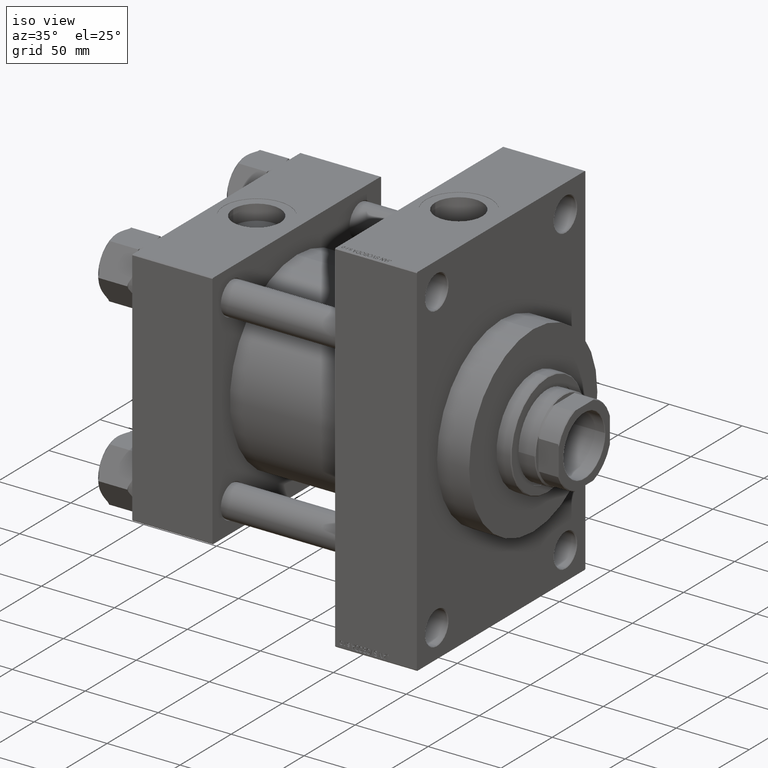
[diagram: clean part render]
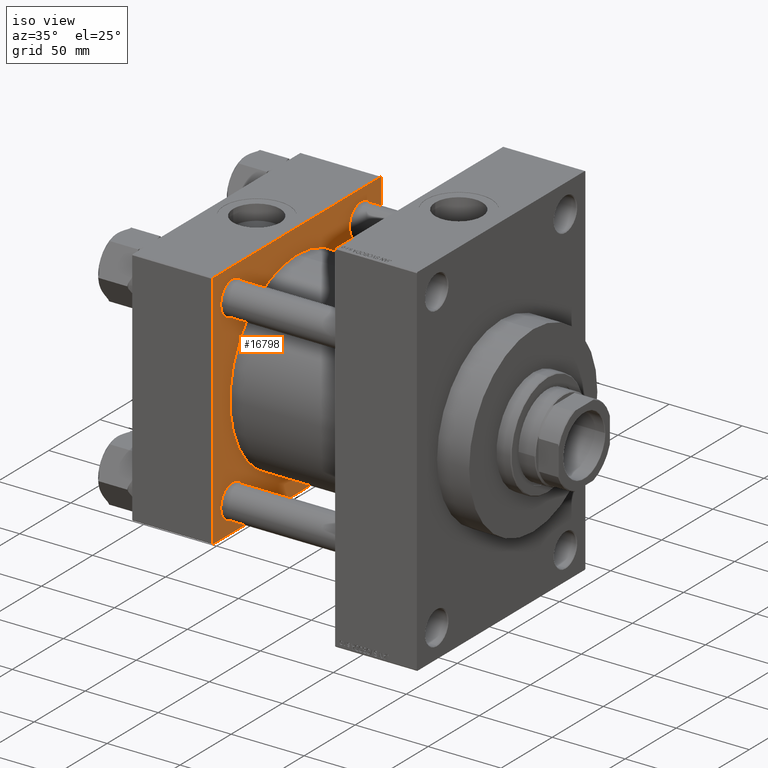
[diagram: same view with one face highlighted and labeled with its STEP entity id]
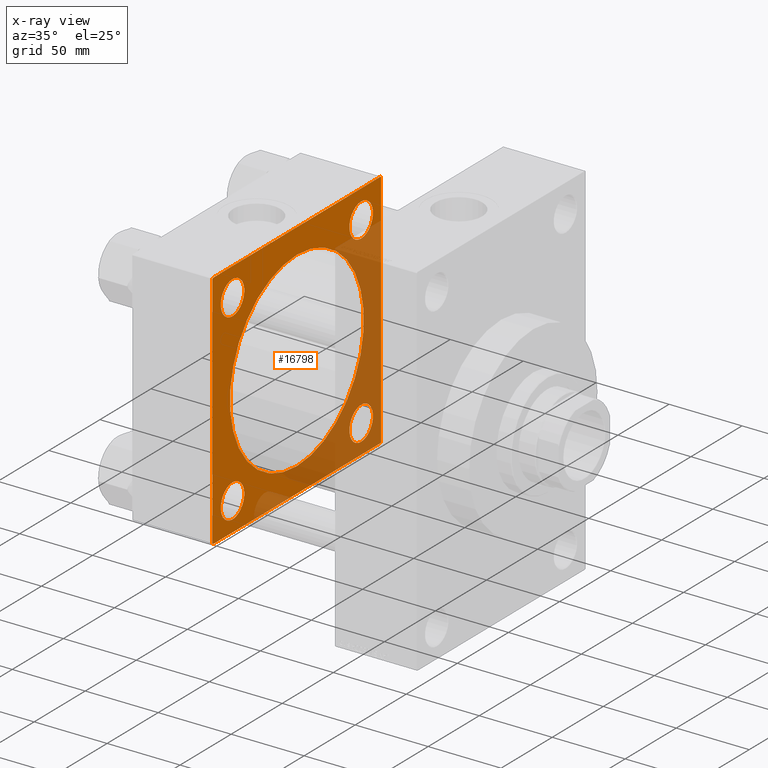
[diagram: x-ray of the same camera — body ghosted, the highlighted face saturated]
A machine part, iso view. The second image highlights one B-rep face of the part: STEP entity #16798.
The next image is the same camera in x-ray: the body ghosted, the highlighted face saturated — about 39% of this face is hidden behind the body in this view.
In plain terms, the highlighted planar face has unit normal (-1, 0, 0).
Its self-contained STEP definition (entity closure, byte-faithful):
#14 = CARTESIAN_POINT ( 'NONE',  ( 55.00000000000000000, 0.000000000000000000, 0.000000000000000000 ) ) ;
#90 = CIRCLE ( 'NONE', #21721, 11.49999999999998224 ) ;
#634 = EDGE_CURVE ( 'NONE', #2371, #37629, #38538, .T. ) ;
#780 = DIRECTION ( 'NONE',  ( 0.000000000000000000, -1.000000000000000000, -8.410780489584519171E-17 ) ) ;
#845 = VERTEX_POINT ( 'NONE', #8544 ) ;
#1207 = VERTEX_POINT ( 'NONE', #28018 ) ;
#1336 = EDGE_CURVE ( 'NONE', #845, #32613, #25278, .T. ) ;
#1425 = DIRECTION ( 'NONE',  ( -1.000000000000000000, 0.000000000000000000, 0.000000000000000000 ) ) ;
#1566 = DIRECTION ( 'NONE',  ( -1.000000000000000000, 0.000000000000000000, 0.000000000000000000 ) ) ;
#1674 = CARTESIAN_POINT ( 'NONE',  ( 55.00000000000000000, -62.94999999999998153, -51.45000000000003837 ) ) ;
#2175 = CARTESIAN_POINT ( 'NONE',  ( 54.99999999999999289, -2.602085213965210642E-15, 0.000000000000000000 ) ) ;
#2371 = VERTEX_POINT ( 'NONE', #11707 ) ;
#2641 = VECTOR ( 'NONE', #19948, 1000.000000000000114 ) ;
#2935 = VERTEX_POINT ( 'NONE', #30879 ) ;
#3059 = FACE_BOUND ( 'NONE', #38645, .T. ) ;
#3333 = DIRECTION ( 'NONE',  ( 1.000000000000000000, -0.000000000000000000, -0.000000000000000000 ) ) ;
#3877 = ORIENTED_EDGE ( 'NONE', *, *, #16617, .T. ) ;
#3902 = CARTESIAN_POINT ( 'NONE',  ( 55.00000000000000000, 82.50000000000002842, -82.00000000000000000 ) ) ;
#4529 = VECTOR ( 'NONE', #34810, 1000.000000000000114 ) ;
#4868 = AXIS2_PLACEMENT_3D ( 'NONE', #14500, #29799, #34033 ) ;
#5671 = DIRECTION ( 'NONE',  ( 0.000000000000000000, 0.000000000000000000, 1.000000000000000000 ) ) ;
#5774 = ORIENTED_EDGE ( 'NONE', *, *, #19845, .T. ) ;
#7042 = DIRECTION ( 'NONE',  ( -1.000000000000000000, 0.000000000000000000, 0.000000000000000000 ) ) ;
#7538 = FACE_BOUND ( 'NONE', #24880, .T. ) ;
#7699 = EDGE_CURVE ( 'NONE', #32613, #9288, #38717, .T. ) ;
#7714 = CIRCLE ( 'NONE', #33304, 11.49999999999998224 ) ;
#7718 = CIRCLE ( 'NONE', #20502, 11.49999999999998224 ) ;
#7777 = EDGE_CURVE ( 'NONE', #34711, #15384, #24301, .T. ) ;
#8084 = AXIS2_PLACEMENT_3D ( 'NONE', #29700, #18417, #29460 ) ;
#8284 = AXIS2_PLACEMENT_3D ( 'NONE', #36450, #1425, #5671 ) ;
#8360 = ORIENTED_EDGE ( 'NONE', *, *, #26247, .T. ) ;
#8544 = CARTESIAN_POINT ( 'NONE',  ( 55.00000000000000000, -82.49999999999997158, 82.00000000000001421 ) ) ;
#8620 = DIRECTION ( 'NONE',  ( 0.000000000000000000, -0.7071067811865474617, 0.7071067811865474617 ) ) ;
#8798 = EDGE_CURVE ( 'NONE', #11040, #9092, #20120, .T. ) ;
#8857 = CIRCLE ( 'NONE', #8084, 11.49999999999998224 ) ;
#9092 = VERTEX_POINT ( 'NONE', #11814 ) ;
#9141 = VECTOR ( 'NONE', #780, 1000.000000000000000 ) ;
#9288 = VERTEX_POINT ( 'NONE', #19227 ) ;
#10068 = FACE_BOUND ( 'NONE', #44705, .T. ) ;
#10182 = DIRECTION ( 'NONE',  ( 0.000000000000000000, 0.000000000000000000, 1.000000000000000000 ) ) ;
#10356 = AXIS2_PLACEMENT_3D ( 'NONE', #48232, #40480, #10182 ) ;
#10973 = VERTEX_POINT ( 'NONE', #18393 ) ;
#11040 = VERTEX_POINT ( 'NONE', #13272 ) ;
#11707 = CARTESIAN_POINT ( 'NONE',  ( 54.99999999999999289, -2.602085213965210642E-15, 65.50000000000001421 ) ) ;
#11783 = CARTESIAN_POINT ( 'NONE',  ( 55.00000000000000000, 62.95000000000000284, -51.45000000000002416 ) ) ;
#11798 = CIRCLE ( 'NONE', #22232, 11.49999999999998224 ) ;
#11814 = CARTESIAN_POINT ( 'NONE',  ( 55.00000000000000000, 82.00000000000005684, 82.50000000000002842 ) ) ;
#12005 = CARTESIAN_POINT ( 'NONE',  ( 55.00000000000000000, -62.94999999999998153, -74.45000000000000284 ) ) ;
#12073 = VECTOR ( 'NONE', #35089, 1000.000000000000000 ) ;
#12372 = CARTESIAN_POINT ( 'NONE',  ( 55.00000000000000000, 82.00000000000005684, 82.50000000000002842 ) ) ;
#12859 = EDGE_CURVE ( 'NONE', #45022, #24508, #7718, .T. ) ;
#13272 = CARTESIAN_POINT ( 'NONE',  ( 55.00000000000000000, 82.50000000000002842, 82.00000000000005684 ) ) ;
#13298 = EDGE_CURVE ( 'NONE', #1207, #32935, #38810, .T. ) ;
#13425 = CARTESIAN_POINT ( 'NONE',  ( 55.00000000000000000, 62.95000000000000284, -62.95000000000000284 ) ) ;
#14500 = CARTESIAN_POINT ( 'NONE',  ( 55.00000000000000000, -62.94999999999998153, 62.95000000000001705 ) ) ;
#15380 = ORIENTED_EDGE ( 'NONE', *, *, #41279, .F. ) ;
#15384 = VERTEX_POINT ( 'NONE', #1674 ) ;
#16060 = CARTESIAN_POINT ( 'NONE',  ( 55.00000000000000000, 82.50000000000002842, 82.50000000000002842 ) ) ;
#16617 = EDGE_CURVE ( 'NONE', #15384, #34711, #7714, .T. ) ;
#16798 = ADVANCED_FACE ( 'NONE', ( #10068, #25348, #48610, #3059, #7538, #31043 ), #42556, .F. ) ;
#17071 = LINE ( 'NONE', #16060, #12073 ) ;
#17712 = CARTESIAN_POINT ( 'NONE',  ( 54.99999999999999289, 5.419351320449953395E-15, -65.50000000000001421 ) ) ;
#18393 = CARTESIAN_POINT ( 'NONE',  ( 55.00000000000000000, 62.95000000000000284, 74.44999999999998863 ) ) ;
#18417 = DIRECTION ( 'NONE',  ( -1.000000000000000000, 0.000000000000000000, 0.000000000000000000 ) ) ;
#18960 = CARTESIAN_POINT ( 'NONE',  ( 55.00000000000000000, -82.00000000000000000, -82.50000000000000000 ) ) ;
#19227 = CARTESIAN_POINT ( 'NONE',  ( 55.00000000000000000, -82.00000000000000000, -82.50000000000000000 ) ) ;
#19290 = CARTESIAN_POINT ( 'NONE',  ( 55.00000000000000000, 82.50000000000002842, -82.00000000000000000 ) ) ;
#19362 = AXIS2_PLACEMENT_3D ( 'NONE', #21484, #40736, #24733 ) ;
#19799 = CARTESIAN_POINT ( 'NONE',  ( 55.00000000000000000, 82.50000000000002842, 82.50000000000002842 ) ) ;
#19845 = EDGE_CURVE ( 'NONE', #20356, #2935, #11798, .T. ) ;
#19948 = DIRECTION ( 'NONE',  ( -0.000000000000000000, -0.7071067811865474617, -0.7071067811865474617 ) ) ;
#20120 = LINE ( 'NONE', #12372, #33921 ) ;
#20356 = VERTEX_POINT ( 'NONE', #44911 ) ;
#20502 = AXIS2_PLACEMENT_3D ( 'NONE', #37882, #29659, #45180 ) ;
#21484 = CARTESIAN_POINT ( 'NONE',  ( 54.99999999999999289, -2.602085213965210642E-15, 0.000000000000000000 ) ) ;
#21652 = CIRCLE ( 'NONE', #4868, 11.49999999999998224 ) ;
#21721 = AXIS2_PLACEMENT_3D ( 'NONE', #13425, #28726, #25234 ) ;
#21872 = ORIENTED_EDGE ( 'NONE', *, *, #13298, .T. ) ;
#22232 = AXIS2_PLACEMENT_3D ( 'NONE', #34058, #7042, #34292 ) ;
#22577 = CARTESIAN_POINT ( 'NONE',  ( 55.00000000000000000, 62.95000000000000284, 51.45000000000002416 ) ) ;
#23071 = EDGE_CURVE ( 'NONE', #10973, #39757, #27159, .T. ) ;
#23372 = EDGE_LOOP ( 'NONE', ( #8360, #5774 ) ) ;
#23478 = VECTOR ( 'NONE', #31204, 999.9999999999998863 ) ;
#23779 = DIRECTION ( 'NONE',  ( 0.000000000000000000, 0.000000000000000000, 1.000000000000000000 ) ) ;
#24301 = CIRCLE ( 'NONE', #8284, 11.49999999999998224 ) ;
#24508 = VERTEX_POINT ( 'NONE', #28796 ) ;
#24639 = EDGE_LOOP ( 'NONE', ( #43923, #21872, #43137, #25146, #43891, #44639, #28345, #36112 ) ) ;
#24733 = DIRECTION ( 'NONE',  ( 0.000000000000000000, 0.000000000000000000, 1.000000000000000000 ) ) ;
#24880 = EDGE_LOOP ( 'NONE', ( #29161, #15380 ) ) ;
#25146 = ORIENTED_EDGE ( 'NONE', *, *, #8798, .T. ) ;
#25212 = DIRECTION ( 'NONE',  ( 0.000000000000000000, 0.000000000000000000, 1.000000000000000000 ) ) ;
#25234 = DIRECTION ( 'NONE',  ( 0.000000000000000000, 0.000000000000000000, 1.000000000000000000 ) ) ;
#25278 = LINE ( 'NONE', #29276, #29786 ) ;
#25348 = FACE_BOUND ( 'NONE', #48527, .T. ) ;
#26247 = EDGE_CURVE ( 'NONE', #2935, #20356, #21652, .T. ) ;
#27159 = CIRCLE ( 'NONE', #10356, 11.49999999999998224 ) ;
#27214 = EDGE_CURVE ( 'NONE', #24508, #45022, #90, .T. ) ;
#28018 = CARTESIAN_POINT ( 'NONE',  ( 55.00000000000000000, 82.00000000000005684, -82.49999999999997158 ) ) ;
#28345 = ORIENTED_EDGE ( 'NONE', *, *, #1336, .T. ) ;
#28726 = DIRECTION ( 'NONE',  ( -1.000000000000000000, 0.000000000000000000, 0.000000000000000000 ) ) ;
#28796 = CARTESIAN_POINT ( 'NONE',  ( 55.00000000000000000, 62.95000000000000284, -74.44999999999998863 ) ) ;
#29161 = ORIENTED_EDGE ( 'NONE', *, *, #634, .F. ) ;
#29276 = CARTESIAN_POINT ( 'NONE',  ( 55.00000000000000000, -82.49999999999997158, 82.50000000000001421 ) ) ;
#29460 = DIRECTION ( 'NONE',  ( 0.000000000000000000, 0.000000000000000000, 1.000000000000000000 ) ) ;
#29659 = DIRECTION ( 'NONE',  ( -1.000000000000000000, 0.000000000000000000, 0.000000000000000000 ) ) ;
#29700 = CARTESIAN_POINT ( 'NONE',  ( 55.00000000000000000, 62.95000000000000284, 62.95000000000000284 ) ) ;
#29786 = VECTOR ( 'NONE', #41496, 1000.000000000000000 ) ;
#29799 = DIRECTION ( 'NONE',  ( -1.000000000000000000, 0.000000000000000000, 0.000000000000000000 ) ) ;
#30149 = EDGE_CURVE ( 'NONE', #39757, #10973, #8857, .T. ) ;
#30564 = DIRECTION ( 'NONE',  ( -1.000000000000000000, 0.000000000000000000, 0.000000000000000000 ) ) ;
#30606 = EDGE_CURVE ( 'NONE', #11040, #32935, #17071, .T. ) ;
#30879 = CARTESIAN_POINT ( 'NONE',  ( 55.00000000000000000, -62.94999999999998153, 51.45000000000003837 ) ) ;
#31043 = FACE_OUTER_BOUND ( 'NONE', #24639, .T. ) ;
#31204 = DIRECTION ( 'NONE',  ( 0.000000000000000000, 0.7071067811865376918, -0.7071067811865574537 ) ) ;
#31673 = AXIS2_PLACEMENT_3D ( 'NONE', #14, #30564, #23779 ) ;
#32171 = CARTESIAN_POINT ( 'NONE',  ( 55.00000000000000000, 82.50000000000002842, -82.49999999999997158 ) ) ;
#32613 = VERTEX_POINT ( 'NONE', #37072 ) ;
#32678 = DIRECTION ( 'NONE',  ( 0.000000000000000000, -1.000000000000000000, -1.682156097916903588E-16 ) ) ;
#32909 = CARTESIAN_POINT ( 'NONE',  ( 55.00000000000000000, -81.99999999999997158, 82.50000000000001421 ) ) ;
#32935 = VERTEX_POINT ( 'NONE', #3902 ) ;
#33304 = AXIS2_PLACEMENT_3D ( 'NONE', #35585, #1566, #44125 ) ;
#33921 = VECTOR ( 'NONE', #8620, 1000.000000000000114 ) ;
#34033 = DIRECTION ( 'NONE',  ( 0.000000000000000000, 0.000000000000000000, 1.000000000000000000 ) ) ;
#34055 = EDGE_CURVE ( 'NONE', #35543, #845, #38729, .T. ) ;
#34058 = CARTESIAN_POINT ( 'NONE',  ( 55.00000000000000000, -62.94999999999998153, 62.95000000000001705 ) ) ;
#34292 = DIRECTION ( 'NONE',  ( 0.000000000000000000, 0.000000000000000000, 1.000000000000000000 ) ) ;
#34711 = VERTEX_POINT ( 'NONE', #12005 ) ;
#34810 = DIRECTION ( 'NONE',  ( -0.000000000000000000, 0.7071067811865474617, 0.7071067811865474617 ) ) ;
#35089 = DIRECTION ( 'NONE',  ( 0.000000000000000000, 0.000000000000000000, -1.000000000000000000 ) ) ;
#35297 = LINE ( 'NONE', #19799, #9141 ) ;
#35543 = VERTEX_POINT ( 'NONE', #32909 ) ;
#35585 = CARTESIAN_POINT ( 'NONE',  ( 55.00000000000000000, -62.94999999999998153, -62.95000000000001705 ) ) ;
#36112 = ORIENTED_EDGE ( 'NONE', *, *, #7699, .T. ) ;
#36450 = CARTESIAN_POINT ( 'NONE',  ( 55.00000000000000000, -62.94999999999998153, -62.95000000000001705 ) ) ;
#37072 = CARTESIAN_POINT ( 'NONE',  ( 55.00000000000000000, -82.50000000000000000, -81.99999999999998579 ) ) ;
#37629 = VERTEX_POINT ( 'NONE', #17712 ) ;
#37722 = VECTOR ( 'NONE', #32678, 1000.000000000000000 ) ;
#37882 = CARTESIAN_POINT ( 'NONE',  ( 55.00000000000000000, 62.95000000000000284, -62.95000000000000284 ) ) ;
#38538 = CIRCLE ( 'NONE', #48180, 65.50000000000001421 ) ;
#38645 = EDGE_LOOP ( 'NONE', ( #39127, #43192 ) ) ;
#38717 = LINE ( 'NONE', #18960, #23478 ) ;
#38729 = LINE ( 'NONE', #38977, #2641 ) ;
#38810 = LINE ( 'NONE', #19290, #4529 ) ;
#38977 = CARTESIAN_POINT ( 'NONE',  ( 55.00000000000000000, -82.49999999999997158, 82.00000000000001421 ) ) ;
#39127 = ORIENTED_EDGE ( 'NONE', *, *, #30149, .T. ) ;
#39757 = VERTEX_POINT ( 'NONE', #22577 ) ;
#40139 = CIRCLE ( 'NONE', #19362, 65.50000000000001421 ) ;
#40325 = ORIENTED_EDGE ( 'NONE', *, *, #12859, .T. ) ;
#40480 = DIRECTION ( 'NONE',  ( -1.000000000000000000, 0.000000000000000000, 0.000000000000000000 ) ) ;
#40736 = DIRECTION ( 'NONE',  ( 1.000000000000000000, -0.000000000000000000, -0.000000000000000000 ) ) ;
#41279 = EDGE_CURVE ( 'NONE', #37629, #2371, #40139, .T. ) ;
#41496 = DIRECTION ( 'NONE',  ( 0.000000000000000000, -1.682156097916903588E-16, -1.000000000000000000 ) ) ;
#41560 = EDGE_CURVE ( 'NONE', #1207, #9288, #47440, .T. ) ;
#41937 = ORIENTED_EDGE ( 'NONE', *, *, #27214, .T. ) ;
#42556 = PLANE ( 'NONE',  #31673 ) ;
#43137 = ORIENTED_EDGE ( 'NONE', *, *, #30606, .F. ) ;
#43192 = ORIENTED_EDGE ( 'NONE', *, *, #23071, .T. ) ;
#43891 = ORIENTED_EDGE ( 'NONE', *, *, #47369, .T. ) ;
#43923 = ORIENTED_EDGE ( 'NONE', *, *, #41560, .F. ) ;
#44125 = DIRECTION ( 'NONE',  ( 0.000000000000000000, 0.000000000000000000, 1.000000000000000000 ) ) ;
#44266 = ORIENTED_EDGE ( 'NONE', *, *, #7777, .T. ) ;
#44639 = ORIENTED_EDGE ( 'NONE', *, *, #34055, .T. ) ;
#44705 = EDGE_LOOP ( 'NONE', ( #44266, #3877 ) ) ;
#44911 = CARTESIAN_POINT ( 'NONE',  ( 55.00000000000000000, -62.94999999999998153, 74.45000000000000284 ) ) ;
#45022 = VERTEX_POINT ( 'NONE', #11783 ) ;
#45180 = DIRECTION ( 'NONE',  ( 0.000000000000000000, 0.000000000000000000, 1.000000000000000000 ) ) ;
#47369 = EDGE_CURVE ( 'NONE', #9092, #35543, #35297, .T. ) ;
#47440 = LINE ( 'NONE', #32171, #37722 ) ;
#48180 = AXIS2_PLACEMENT_3D ( 'NONE', #2175, #3333, #25212 ) ;
#48232 = CARTESIAN_POINT ( 'NONE',  ( 55.00000000000000000, 62.95000000000000284, 62.95000000000000284 ) ) ;
#48527 = EDGE_LOOP ( 'NONE', ( #41937, #40325 ) ) ;
#48610 = FACE_BOUND ( 'NONE', #23372, .T. ) ;